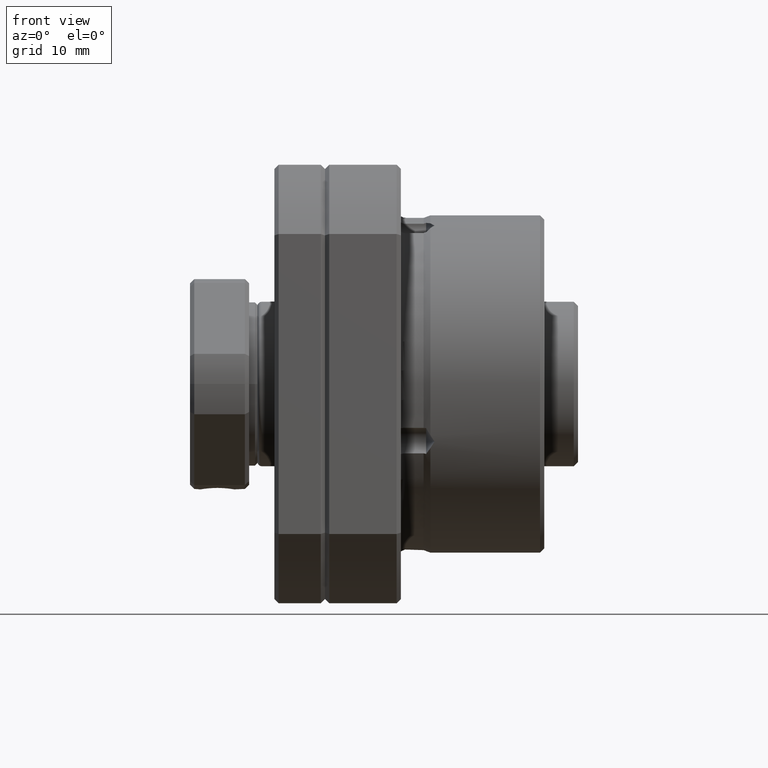
[diagram: clean part render]
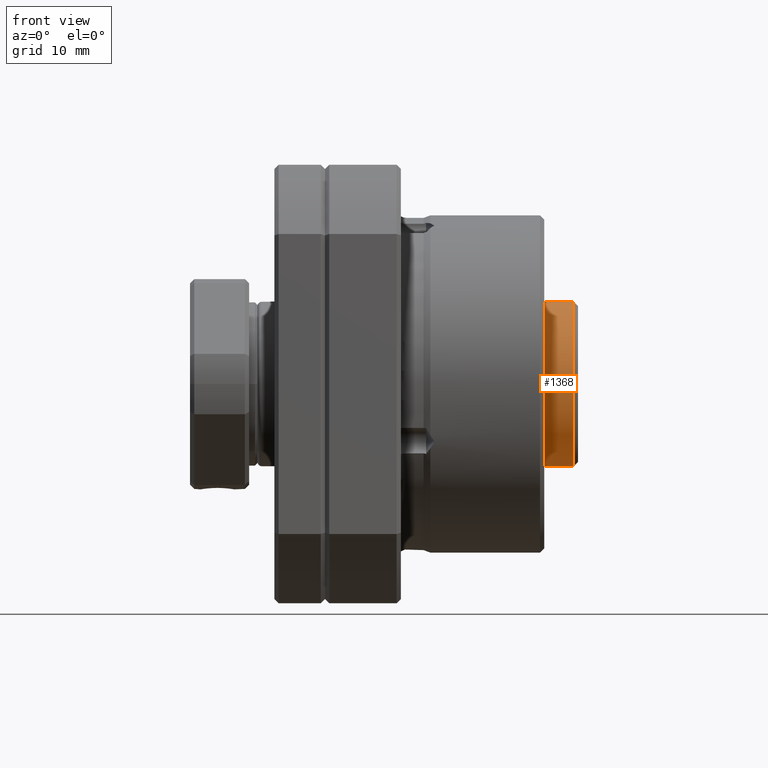
[diagram: same view with one face highlighted and labeled with its STEP entity id]
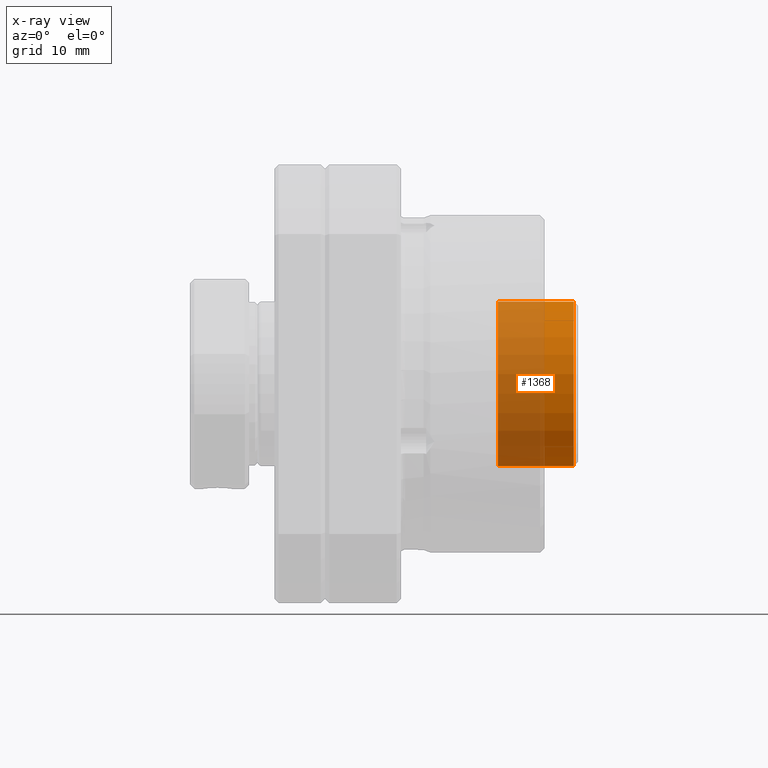
[diagram: x-ray of the same camera — body ghosted, the highlighted face saturated]
A machine part, front view. The second image highlights one B-rep face of the part: STEP entity #1368.
The next image is the same camera in x-ray: the body ghosted, the highlighted face saturated — about 61% of this face is hidden behind the body in this view.
In plain terms, the highlighted cylindrical surface (partial cylindrical patch) has radius 9.75 mm, axis along (-1, 0, 0).
Its self-contained STEP definition (entity closure, byte-faithful):
#1236 = VERTEX_POINT ( 'NONE', #4940 ) ;
#1285 = VERTEX_POINT ( 'NONE', #5018 ) ;
#1290 = VERTEX_POINT ( 'NONE', #5007 ) ;
#1329 = EDGE_CURVE ( 'NONE', #1285, #1290, #5066, .T. ) ;
#1332 = EDGE_CURVE ( 'NONE', #1338, #1236, #5123, .T. ) ;
#1338 = VERTEX_POINT ( 'NONE', #5103 ) ;
#1349 = ORIENTED_EDGE ( 'NONE', *, *, #1350, .T. ) ;
#1350 = EDGE_CURVE ( 'NONE', #1236, #1290, #5146, .T. ) ;
#1368 = ADVANCED_FACE ( 'NONE', ( #5186 ), #5185, .T. ) ;
#1369 = EDGE_LOOP ( 'NONE', ( #1370, #1371, #1373, #1349 ) ) ;
#1370 = ORIENTED_EDGE ( 'NONE', *, *, #1329, .F. ) ;
#1371 = ORIENTED_EDGE ( 'NONE', *, *, #1372, .T. ) ;
#1372 = EDGE_CURVE ( 'NONE', #1285, #1338, #5183, .T. ) ;
#1373 = ORIENTED_EDGE ( 'NONE', *, *, #1332, .T. ) ;
#4940 = CARTESIAN_POINT ( 'NONE',  ( 20.50000000000001800, 1.286208542190708300E-047, 9.750000000000000000 ) ) ;
#5007 = CARTESIAN_POINT ( 'NONE',  ( 20.50000000000001800, 1.193991194976817800E-015, -9.750000000000000000 ) ) ;
#5018 = CARTESIAN_POINT ( 'NONE',  ( 29.50000000000001100, 1.193991194976817800E-015, -9.750000000000000000 ) ) ;
#5063 = DIRECTION ( 'NONE',  ( -1.000000000000000000, 7.572333409722472000E-049, 0.0000000000000000000 ) ) ;
#5064 = VECTOR ( 'NONE', #5063, 1000.000000000000000 ) ;
#5065 = CARTESIAN_POINT ( 'NONE',  ( 4.938478467263696100, 1.193991194976817800E-015, -9.750000000000000000 ) ) ;
#5066 = LINE ( 'NONE', #5065, #5064 ) ;
#5103 = CARTESIAN_POINT ( 'NONE',  ( 29.50000000000001100, -1.471089696434744500E-047, 9.750000000000000000 ) ) ;
#5120 = DIRECTION ( 'NONE',  ( -1.000000000000000000, 7.572333409722472000E-049, 0.0000000000000000000 ) ) ;
#5121 = VECTOR ( 'NONE', #5120, 1000.000000000000000 ) ;
#5122 = CARTESIAN_POINT ( 'NONE',  ( 4.938478467263696100, 2.805333839712768600E-047, 9.750000000000000000 ) ) ;
#5123 = LINE ( 'NONE', #5122, #5121 ) ;
#5142 = DIRECTION ( 'NONE',  ( 0.0000000000000000000, -6.842277657836022400E-049, -1.000000000000000000 ) ) ;
#5143 = DIRECTION ( 'NONE',  ( 1.000000000000000000, -7.572333409722472000E-049, 0.0000000000000000000 ) ) ;
#5144 = CARTESIAN_POINT ( 'NONE',  ( 20.50000000000001800, -2.138211768073756500E-047, 7.703719777548943400E-031 ) ) ;
#5145 = AXIS2_PLACEMENT_3D ( 'NONE', #5144, #5143, #5142 ) ;
#5146 = CIRCLE ( 'NONE', #5145, 9.750000000000000000 ) ;
#5176 = DIRECTION ( 'NONE',  ( 0.0000000000000000000, 6.842277657836022400E-049, 1.000000000000000000 ) ) ;
#5177 = DIRECTION ( 'NONE',  ( -1.000000000000000000, 7.572333409722472000E-049, 0.0000000000000000000 ) ) ;
#5178 = CARTESIAN_POINT ( 'NONE',  ( 29.50000000000001100, -2.138211768073756500E-047, 3.851859888774471700E-031 ) ) ;
#5179 = AXIS2_PLACEMENT_3D ( 'NONE', #5178, #5177, #5176 ) ;
#5180 = DIRECTION ( 'NONE',  ( 0.0000000000000000000, 6.842277657836022400E-049, 1.000000000000000000 ) ) ;
#5181 = DIRECTION ( 'NONE',  ( -1.000000000000000000, 7.572333409722472000E-049, 0.0000000000000000000 ) ) ;
#5182 = AXIS2_PLACEMENT_3D ( 'NONE', #5184, #5181, #5180 ) ;
#5183 = CIRCLE ( 'NONE', #5179, 9.750000000000000000 ) ;
#5184 = CARTESIAN_POINT ( 'NONE',  ( 4.938478467263696100, 2.138211768073756500E-047, 3.851859888774471700E-031 ) ) ;
#5185 = CYLINDRICAL_SURFACE ( 'NONE', #5182, 9.750000000000000000 ) ;
#5186 = FACE_OUTER_BOUND ( 'NONE', #1369, .T. ) ;